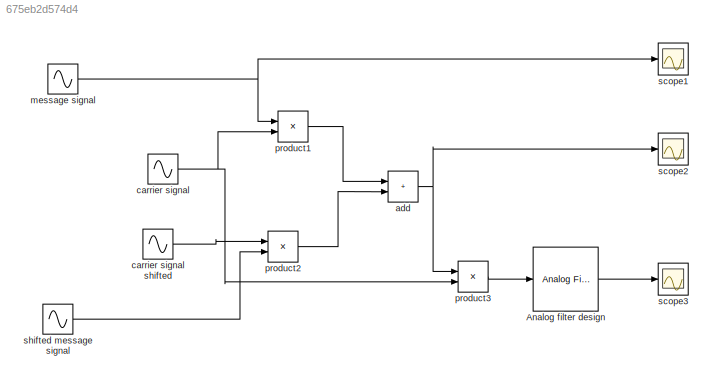
MODEL slx_675eb2d574d4
KIND model
CONFIG AbsTol = auto
CONFIG EnableMultiTasking = off
CONFIG FixedStep = auto
CONFIG MaxStep = auto
CONFIG MinStep = auto
CONFIG RelTol = 1e-3
CONFIG SampleTimeConstraint = Unconstrained
CONFIG SolverName = VariableStepAuto
CONFIG StartTime = 0.0
CONFIG StopTime = 0.001
BLOCK [Reference] Analog filter design   REF=dsparch4/Analog
Filter Design
  SourceBlock = dsparch4/Analog\nFilter Design
  SourceType = Analog Filter Design
BLOCK [Sum] add
  IconShape = rectangular
BLOCK [Sin] carrier signal
  Frequency = 2*pi*100000
  Phase = -(pi/2)
  SampleTime = 0
BLOCK [Sin] carrier signal shifted
  Frequency = 2*pi*100000
  SampleTime = 0
BLOCK [Sin] message signal
  Frequency = 2*pi*2000
  SampleTime = 0
BLOCK [Product] product1
BLOCK [Product] product2
BLOCK [Product] product3
BLOCK [Scope] scope1
  Floating = off
  NumInputPorts = 1
  ScopeSpecificationString = Simulink.scopes.TimeScopeBlockCfg('CurrentConfiguration', extmgr.ConfigurationSet(extmgr.Configuration('Core','General UI',true),extmgr.Configuration('Core','Source UI',true),extmgr.Configuration('Sources','WiredSimulink',true),extmgr.Configuration('Visuals','Time Domain',true,'SerializedDisplays',{struct('MinYLimReal','-0.00305','MaxYLimReal','0.02744','YLabelReal','','MinYLimMag','0.00000','MaxY...<+1363ch>
BLOCK [Scope] scope2
  Floating = off
  NumInputPorts = 1
  ScopeSpecificationString = Simulink.scopes.TimeScopeBlockCfg('CurrentConfiguration', extmgr.ConfigurationSet(extmgr.Configuration('Core','General UI',true),extmgr.Configuration('Core','Source UI',true),extmgr.Configuration('Sources','WiredSimulink',true,'DataLoggingVariableName','ScopeData2'),extmgr.Configuration('Visuals','Time Domain',true,'SerializedDisplays',{struct('MinYLimReal','-1.06556','MaxYLimReal','0.1184','YLabe...<+1389ch>
BLOCK [Scope] scope3 
  Floating = off
  NumInputPorts = 1
  ScopeSpecificationString = Simulink.scopes.TimeScopeBlockCfg('CurrentConfiguration', extmgr.ConfigurationSet(extmgr.Configuration('Core','General UI',true),extmgr.Configuration('Core','Source UI',true),extmgr.Configuration('Sources','WiredSimulink',true,'DataLoggingVariableName','ScopeData1'),extmgr.Configuration('Visuals','Time Domain',true,'SerializedDisplays',{struct('MinYLimReal','-0.45097','MaxYLimReal','0.47568','YLab...<+1409ch>
BLOCK [Sin] shifted message signal
  Frequency = 2*pi*2000
  Phase = -(pi/2)
  SampleTime = 0
LINE Analog filter design :1 -> scope3 :1
NET add:1 -> product3:1, scope2:1
LINE carrier signal shifted:1 -> product2:1
NET carrier signal:1 -> product1:2, product3:2
NET message signal:1 -> product1:1, scope1:1
LINE product1:1 -> add:1
LINE product2:1 -> add:2
LINE product3:1 -> Analog filter design :1
LINE shifted message signal:1 -> product2:2
note: NET lines group one-source signal fan-out (src -> all destinations, sorted); 1:1 wires keep LINE
